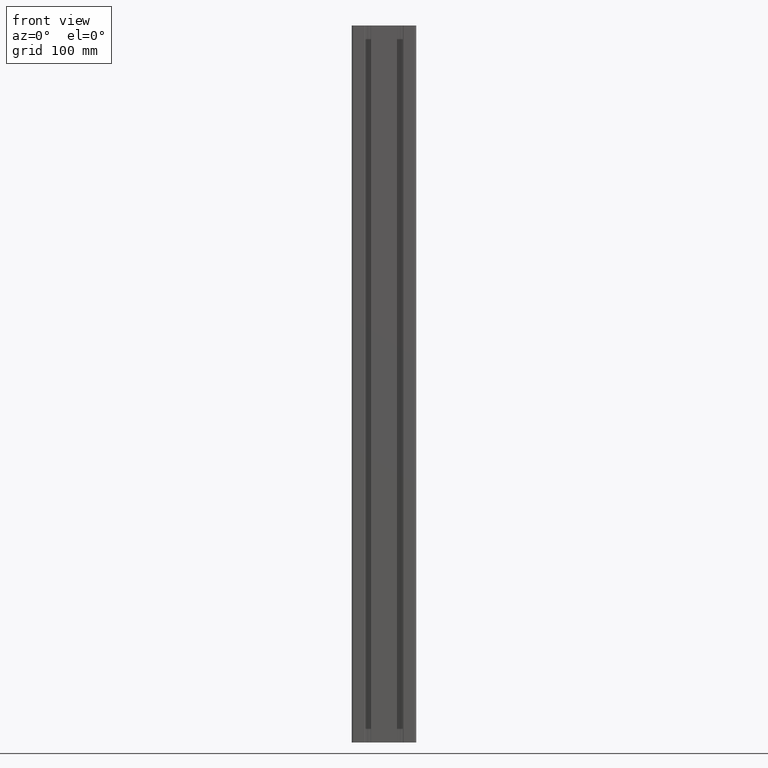
[diagram: clean part render]
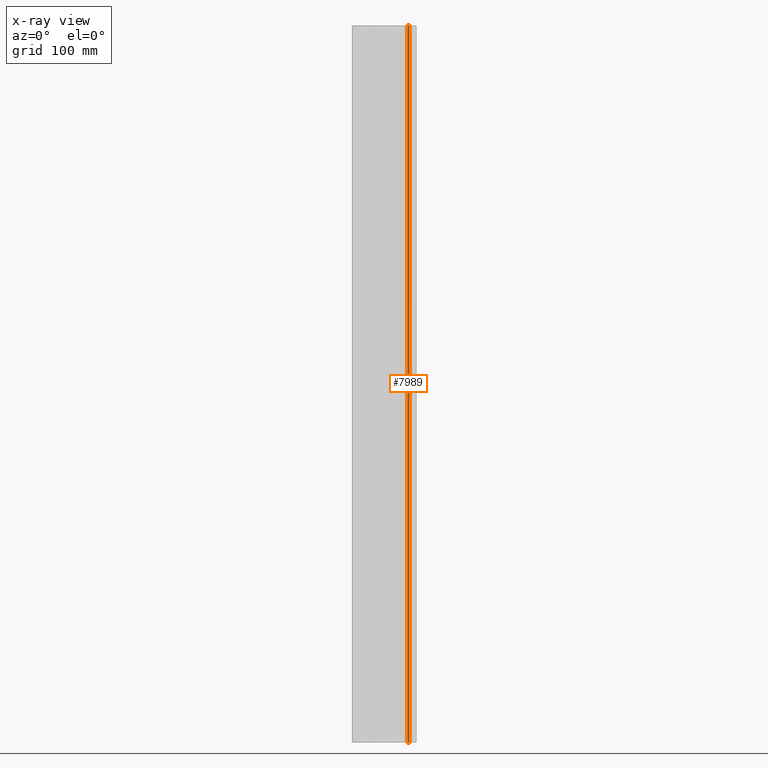
[diagram: x-ray — body ghosted, one internal face saturated and labeled with its STEP entity id]
A machine part, front view, then the same camera in x-ray: the body is ghosted and one INTERNAL B-rep face — a face not visible from any outside direction — is saturated and labeled: STEP entity #7989.
In plain terms, the highlighted cylindrical surface (edge-blend (fillet) strip) has radius 3.2 mm, axis along (0, 0, 1).
Its self-contained STEP definition (entity closure, byte-faithful):
#395=FACE_OUTER_BOUND('',#805,.T.);
#805=EDGE_LOOP('',(#5745,#5746,#5747,#5748));
#1349=LINE('',#12312,#2189);
#1350=LINE('',#12315,#2190);
#2189=VECTOR('',#9910,10.);
#2190=VECTOR('',#9913,10.);
#2953=CIRCLE('',#8583,3.19999999999997);
#2954=CIRCLE('',#8584,3.19999999999997);
#3441=VERTEX_POINT('',#12308);
#3442=VERTEX_POINT('',#12309);
#3443=VERTEX_POINT('',#12311);
#3444=VERTEX_POINT('',#12313);
#4389=EDGE_CURVE('',#3441,#3442,#2953,.T.);
#4390=EDGE_CURVE('',#3441,#3443,#1349,.T.);
#4391=EDGE_CURVE('',#3444,#3443,#2954,.T.);
#4392=EDGE_CURVE('',#3442,#3444,#1350,.T.);
#5745=ORIENTED_EDGE('',*,*,#4389,.F.);
#5746=ORIENTED_EDGE('',*,*,#4390,.T.);
#5747=ORIENTED_EDGE('',*,*,#4391,.F.);
#5748=ORIENTED_EDGE('',*,*,#4392,.F.);
#7745=CYLINDRICAL_SURFACE('',#8582,3.19999999999997);
#7989=ADVANCED_FACE('',(#395),#7745,.F.);
#8582=AXIS2_PLACEMENT_3D('',#12307,#9906,#9907);
#8583=AXIS2_PLACEMENT_3D('',#12310,#9908,#9909);
#8584=AXIS2_PLACEMENT_3D('',#12314,#9911,#9912);
#9906=DIRECTION('center_axis',(0.,0.,1.));
#9907=DIRECTION('ref_axis',(1.,0.,0.));
#9908=DIRECTION('center_axis',(0.,0.,1.));
#9909=DIRECTION('ref_axis',(1.,0.,0.));
#9910=DIRECTION('',(0.,0.,1.));
#9911=DIRECTION('center_axis',(0.,0.,-1.));
#9912=DIRECTION('ref_axis',(1.,0.,0.));
#9913=DIRECTION('',(0.,0.,1.));
#12307=CARTESIAN_POINT('Origin',(35.6999999999761,80.7000000000105,0.));
#12308=CARTESIAN_POINT('',(32.4999999999762,80.7000000000105,0.));
#12309=CARTESIAN_POINT('',(35.6999999999771,77.5000000000106,0.));
#12310=CARTESIAN_POINT('Origin',(35.6999999999761,80.7000000000105,0.));
#12311=CARTESIAN_POINT('',(32.4999999999762,80.7000000000105,1000.));
#12312=CARTESIAN_POINT('',(32.4999999999762,80.7000000000105,0.));
#12313=CARTESIAN_POINT('',(35.6999999999771,77.5000000000106,1000.));
#12314=CARTESIAN_POINT('Origin',(35.6999999999761,80.7000000000105,1000.));
#12315=CARTESIAN_POINT('',(35.6999999999771,77.5000000000106,0.));